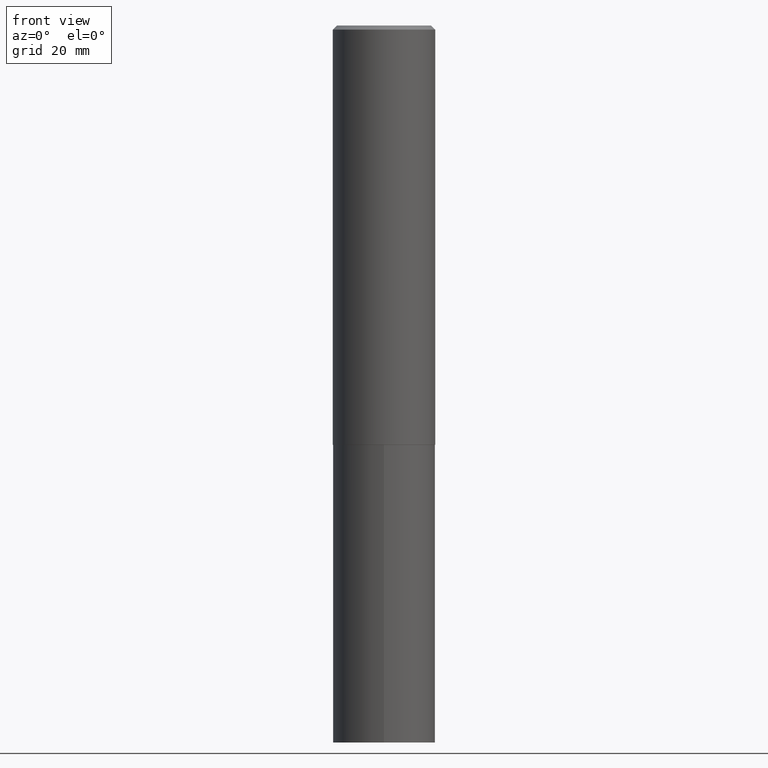
[diagram: clean part render]
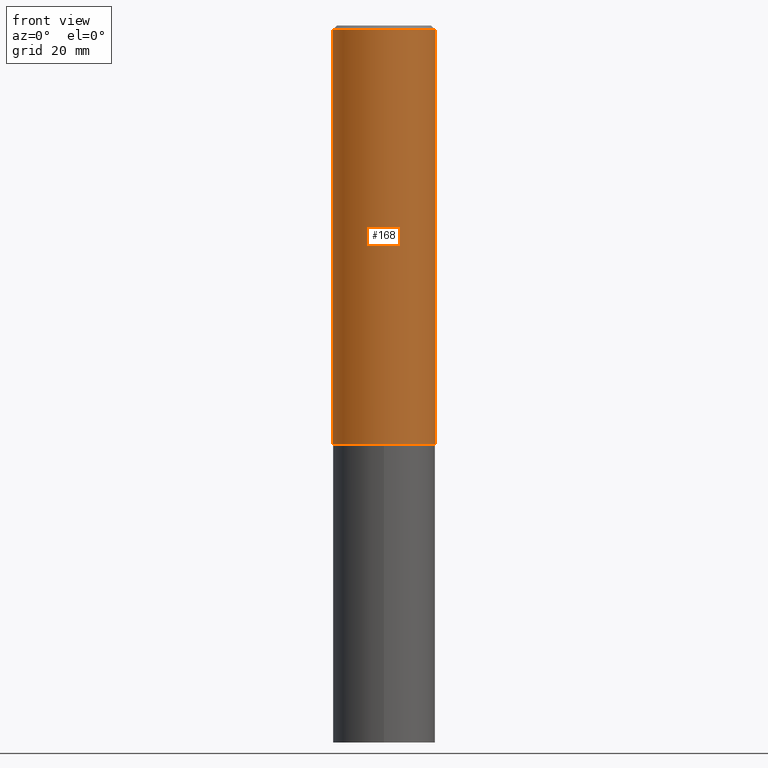
[diagram: same view with one face highlighted and labeled with its STEP entity id]
A machine part, front view. The second image highlights one B-rep face of the part: STEP entity #168.
In plain terms, the highlighted cylindrical surface (partial cylindrical patch) has radius 10 mm, axis along (-0, 0, 1).
Its self-contained STEP definition (entity closure, byte-faithful):
#4 = EDGE_CURVE ( 'NONE', #285, #114, #291, .T. ) ;
#19 = CYLINDRICAL_SURFACE ( 'NONE', #80, 0.3937000000000002164 ) ;
#30 = EDGE_LOOP ( 'NONE', ( #270, #326, #188, #348 ) ) ;
#45 = DIRECTION ( 'NONE',  ( -2.445468806185136597E-29, 3.491481338843145583E-15, 1.000000000000000000 ) ) ;
#46 = EDGE_CURVE ( 'NONE', #350, #285, #150, .T. ) ;
#47 = CARTESIAN_POINT ( 'NONE',  ( 0.3937000000000000499, -2.858301198043932317E-15, -0.03125000000000018735 ) ) ;
#59 = EDGE_CURVE ( 'NONE', #350, #118, #156, .T. ) ;
#64 = DIRECTION ( 'NONE',  ( -2.445468806185136597E-29, 3.491481338843145583E-15, 1.000000000000000000 ) ) ;
#80 = AXIS2_PLACEMENT_3D ( 'NONE', #336, #127, #247 ) ;
#87 = EDGE_CURVE ( 'NONE', #118, #114, #280, .T. ) ;
#114 = VERTEX_POINT ( 'NONE', #47 ) ;
#118 = VERTEX_POINT ( 'NONE', #195 ) ;
#127 = DIRECTION ( 'NONE',  ( -2.445468806185136597E-29, 3.491481338843145583E-15, 1.000000000000000000 ) ) ;
#128 = AXIS2_PLACEMENT_3D ( 'NONE', #298, #45, #214 ) ;
#141 = AXIS2_PLACEMENT_3D ( 'NONE', #236, #64, #152 ) ;
#150 = LINE ( 'NONE', #208, #324 ) ;
#152 = DIRECTION ( 'NONE',  ( 1.000000000000000000, -6.982962677686266711E-15, 0.000000000000000000 ) ) ;
#156 = CIRCLE ( 'NONE', #141, 0.3937000000000003830 ) ;
#168 = ADVANCED_FACE ( 'NONE', ( #362 ), #19, .T. ) ;
#188 = ORIENTED_EDGE ( 'NONE', *, *, #87, .T. ) ;
#195 = CARTESIAN_POINT ( 'NONE',  ( 0.3937000000000003830, -1.399979272435935082E-14, -3.222299999999999276 ) ) ;
#208 = CARTESIAN_POINT ( 'NONE',  ( -0.3937000000000002164, 2.797406750687515970E-15, -1.936584745033357576E-29 ) ) ;
#214 = DIRECTION ( 'NONE',  ( 1.000000000000000000, -6.982962677686265922E-15, 0.000000000000000000 ) ) ;
#219 = CARTESIAN_POINT ( 'NONE',  ( 0.3937000000000002164, -2.749192406205084794E-15, 1.919750796630861012E-29 ) ) ;
#225 = CARTESIAN_POINT ( 'NONE',  ( -0.3937000000000000499, -2.882447804309040017E-15, -0.03125000000000018735 ) ) ;
#236 = CARTESIAN_POINT ( 'NONE',  ( 7.880034134170364621E-29, -1.125060031815426445E-14, -3.222299999999999276 ) ) ;
#247 = DIRECTION ( 'NONE',  ( 1.000000000000000000, -6.982962677686266711E-15, 4.876176775795935793E-29 ) ) ;
#258 = CARTESIAN_POINT ( 'NONE',  ( -0.3937000000000003830, -8.453193567466747297E-15, -3.222299999999999276 ) ) ;
#270 = ORIENTED_EDGE ( 'NONE', *, *, #46, .F. ) ;
#276 = DIRECTION ( 'NONE',  ( -2.445468806185136877E-29, 3.491481338843145188E-15, 1.000000000000000000 ) ) ;
#280 = LINE ( 'NONE', #219, #344 ) ;
#285 = VERTEX_POINT ( 'NONE', #225 ) ;
#291 = CIRCLE ( 'NONE', #128, 0.3937000000000000499 ) ;
#293 = DIRECTION ( 'NONE',  ( -2.445468806185136877E-29, 3.491481338843145188E-15, 1.000000000000000000 ) ) ;
#298 = CARTESIAN_POINT ( 'NONE',  ( 7.642090019328597407E-31, -1.091087918388489527E-16, -0.03125000000000018735 ) ) ;
#324 = VECTOR ( 'NONE', #293, 39.37007874015748143 ) ;
#326 = ORIENTED_EDGE ( 'NONE', *, *, #59, .T. ) ;
#336 = CARTESIAN_POINT ( 'NONE',  ( 0.000000000000000000, 0.000000000000000000, 0.000000000000000000 ) ) ;
#344 = VECTOR ( 'NONE', #276, 39.37007874015748143 ) ;
#348 = ORIENTED_EDGE ( 'NONE', *, *, #4, .F. ) ;
#350 = VERTEX_POINT ( 'NONE', #258 ) ;
#362 = FACE_OUTER_BOUND ( 'NONE', #30, .T. ) ;